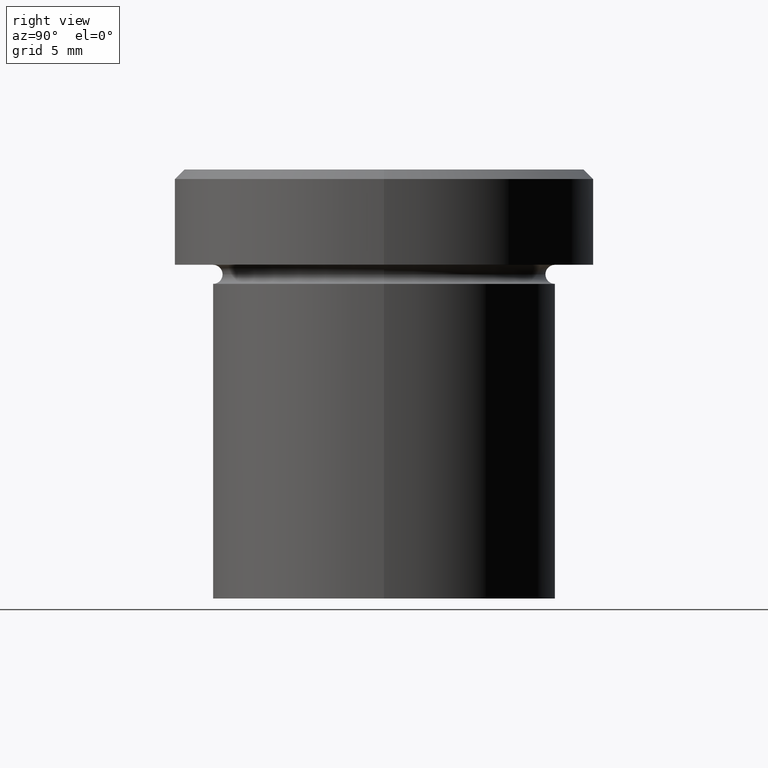
[diagram: clean part render]
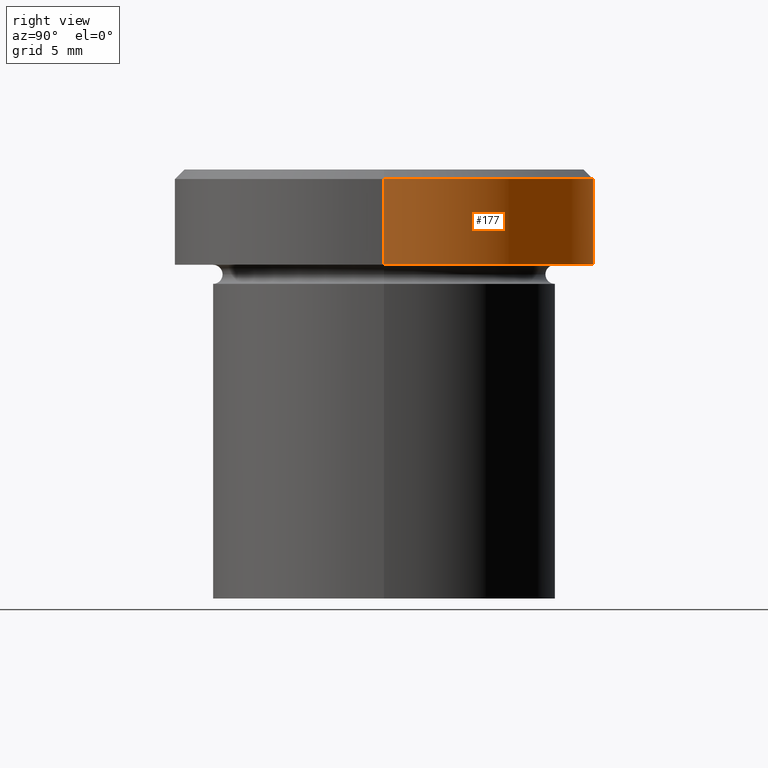
[diagram: same view with one face highlighted and labeled with its STEP entity id]
A machine part, right view. The second image highlights one B-rep face of the part: STEP entity #177.
In plain terms, the highlighted cylindrical surface (partial cylindrical patch) has radius 11 mm, axis along (-0, -0, 1).
Its self-contained STEP definition (entity closure, byte-faithful):
#1 = CARTESIAN_POINT ( 'NONE',  ( 0.000000000000000000, 0.000000000000000000, -5.000000000000000000 ) ) ;
#5 = VECTOR ( 'NONE', #340, 1000.000000000000000 ) ;
#14 = CARTESIAN_POINT ( 'NONE',  ( -11.00000000000000000, 1.347111479062088405E-15, -0.5000000000000004441 ) ) ;
#16 = LINE ( 'NONE', #191, #5 ) ;
#20 = CARTESIAN_POINT ( 'NONE',  ( 11.00000000000000000, 0.000000000000000000, -5.000000000000000000 ) ) ;
#37 = ORIENTED_EDGE ( 'NONE', *, *, #317, .T. ) ;
#49 = AXIS2_PLACEMENT_3D ( 'NONE', #391, #104, #354 ) ;
#54 = ORIENTED_EDGE ( 'NONE', *, *, #76, .F. ) ;
#60 = FACE_OUTER_BOUND ( 'NONE', #372, .T. ) ;
#65 = DIRECTION ( 'NONE',  ( 1.000000000000000000, 0.000000000000000000, 0.000000000000000000 ) ) ;
#73 = ORIENTED_EDGE ( 'NONE', *, *, #287, .T. ) ;
#76 = EDGE_CURVE ( 'NONE', #90, #213, #16, .T. ) ;
#90 = VERTEX_POINT ( 'NONE', #20 ) ;
#91 = DIRECTION ( 'NONE',  ( 1.000000000000000000, 0.000000000000000000, 0.000000000000000000 ) ) ;
#95 = CARTESIAN_POINT ( 'NONE',  ( 0.000000000000000000, 0.000000000000000000, 0.000000000000000000 ) ) ;
#104 = DIRECTION ( 'NONE',  ( 0.000000000000000000, 0.000000000000000000, -1.000000000000000000 ) ) ;
#135 = VERTEX_POINT ( 'NONE', #14 ) ;
#177 = ADVANCED_FACE ( 'NONE', ( #60 ), #273, .T. ) ;
#184 = LINE ( 'NONE', #312, #285 ) ;
#187 = ORIENTED_EDGE ( 'NONE', *, *, #313, .T. ) ;
#191 = CARTESIAN_POINT ( 'NONE',  ( 11.00000000000000000, 0.000000000000000000, 0.000000000000000000 ) ) ;
#213 = VERTEX_POINT ( 'NONE', #269 ) ;
#220 = AXIS2_PLACEMENT_3D ( 'NONE', #1, #378, #65 ) ;
#224 = CARTESIAN_POINT ( 'NONE',  ( -11.00000000000000000, 1.347111479062088405E-15, -5.000000000000000000 ) ) ;
#234 = CIRCLE ( 'NONE', #220, 11.00000000000000000 ) ;
#235 = DIRECTION ( 'NONE',  ( -0.000000000000000000, -0.000000000000000000, 1.000000000000000000 ) ) ;
#255 = DIRECTION ( 'NONE',  ( -0.000000000000000000, -0.000000000000000000, 1.000000000000000000 ) ) ;
#268 = VERTEX_POINT ( 'NONE', #224 ) ;
#269 = CARTESIAN_POINT ( 'NONE',  ( 11.00000000000000000, 0.000000000000000000, -0.5000000000000004441 ) ) ;
#273 = CYLINDRICAL_SURFACE ( 'NONE', #376, 11.00000000000000000 ) ;
#285 = VECTOR ( 'NONE', #255, 1000.000000000000000 ) ;
#287 = EDGE_CURVE ( 'NONE', #135, #213, #324, .T. ) ;
#312 = CARTESIAN_POINT ( 'NONE',  ( -11.00000000000000000, 1.347111479062088405E-15, 0.000000000000000000 ) ) ;
#313 = EDGE_CURVE ( 'NONE', #90, #268, #234, .T. ) ;
#317 = EDGE_CURVE ( 'NONE', #268, #135, #184, .T. ) ;
#324 = CIRCLE ( 'NONE', #49, 11.00000000000000000 ) ;
#340 = DIRECTION ( 'NONE',  ( -0.000000000000000000, -0.000000000000000000, 1.000000000000000000 ) ) ;
#354 = DIRECTION ( 'NONE',  ( 1.000000000000000000, 0.000000000000000000, 0.000000000000000000 ) ) ;
#372 = EDGE_LOOP ( 'NONE', ( #187, #37, #73, #54 ) ) ;
#376 = AXIS2_PLACEMENT_3D ( 'NONE', #95, #235, #91 ) ;
#378 = DIRECTION ( 'NONE',  ( -0.000000000000000000, -0.000000000000000000, 1.000000000000000000 ) ) ;
#391 = CARTESIAN_POINT ( 'NONE',  ( 0.000000000000000000, 0.000000000000000000, -0.5000000000000004441 ) ) ;